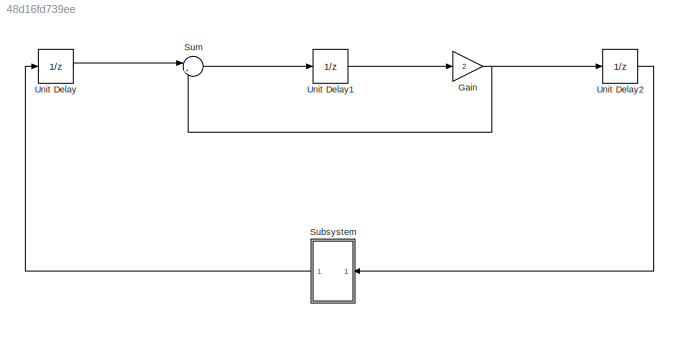
MODEL slx_48d16fd739ee
KIND model
CONFIG AbsTol = auto
CONFIG FixedStep = 0.002
CONFIG MaxStep = auto
CONFIG MinStep = auto
CONFIG RelTol = 1e-3
CONFIG SampleTimeConstraint = Unconstrained
CONFIG Solver = FixedStepDiscrete
CONFIG SolverMode = SingleTasking
CONFIG SolverName = FixedStepDiscrete
CONFIG StartTime = 0.0
CONFIG StopTime = 10.0
BLOCK [Gain] Gain
  Gain = 2
  OutDataTypeStr = Inherit: Inherit via internal rule
  ParamDataTypeStr = Inherit: Inherit via internal rule
  SampleTime = 0.002
  SaturateOnIntegerOverflow = off
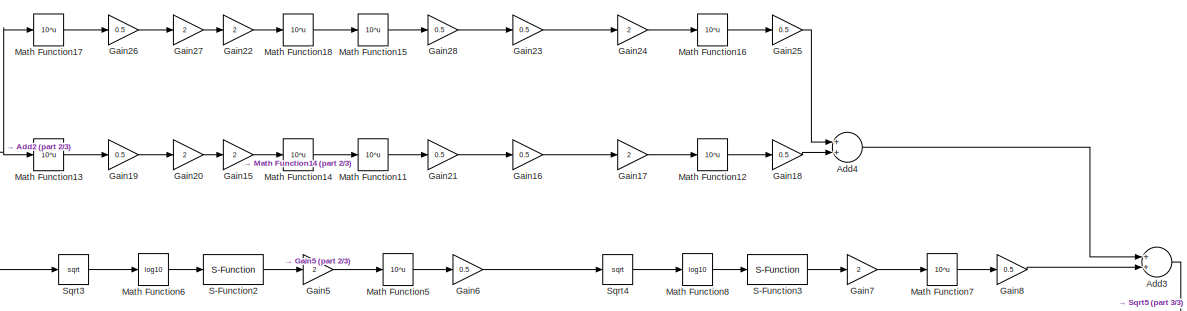
[diagram: Subsystem - part 1/3, top right region]
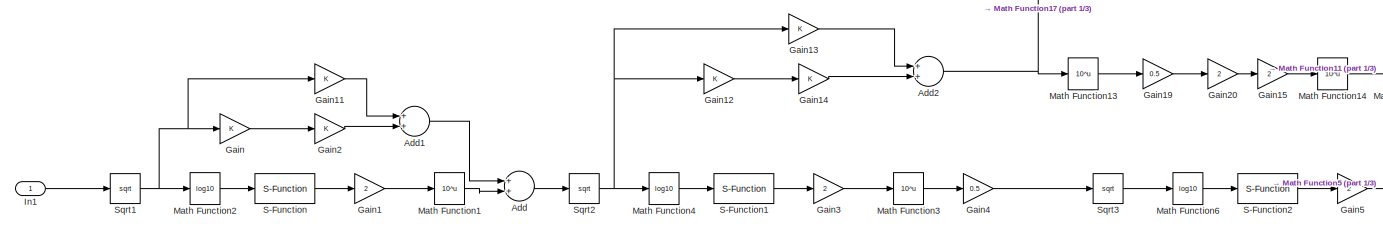
[diagram: Subsystem - part 2/3, middle left region]
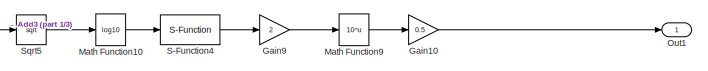
[diagram: Subsystem - part 3/3, bottom center region]
BLOCK [SubSystem] Subsystem
  Ports = [1, 1]
  RequestExecContextInheritance = off
BLOCK [Sum] Subsystem/Add
  InputSameDT = off
  OutDataTypeStr = Inherit: Inherit via internal rule
  Ports = [2, 1]
  SampleTime = [0.01,0]
  SaturateOnIntegerOverflow = off
BLOCK [Sum] Subsystem/Add1
  InputSameDT = off
  OutDataTypeStr = Inherit: Inherit via internal rule
  Ports = [2, 1]
  SampleTime = [0.01,0]
  SaturateOnIntegerOverflow = off
BLOCK [Sum] Subsystem/Add2
  InputSameDT = off
  OutDataTypeStr = Inherit: Inherit via internal rule
  Ports = [2, 1]
  SampleTime = [0.01,0]
  SaturateOnIntegerOverflow = off
BLOCK [Sum] Subsystem/Add3
  InputSameDT = off
  OutDataTypeStr = Inherit: Inherit via internal rule
  Ports = [2, 1]
  SampleTime = [0.01,0.006]
  SaturateOnIntegerOverflow = off
BLOCK [Sum] Subsystem/Add4
  InputSameDT = off
  OutDataTypeStr = Inherit: Inherit via internal rule
  Ports = [2, 1]
  SampleTime = [0.01,0]
  SaturateOnIntegerOverflow = off
BLOCK [Gain] Subsystem/Gain
  OutDataTypeStr = Inherit: Inherit via internal rule
  ParamDataTypeStr = Inherit: Inherit via internal rule
  SampleTime = [0.01,0]
  SaturateOnIntegerOverflow = off
BLOCK [Gain] Subsystem/Gain1
  Gain = 2
  OutDataTypeStr = Inherit: Inherit via internal rule
  ParamDataTypeStr = Inherit: Inherit via internal rule
  SampleTime = [0.01,0]
  SaturateOnIntegerOverflow = off
BLOCK [Gain] Subsystem/Gain10
  Gain = 0.5
  OutDataTypeStr = Inherit: Inherit via internal rule
  ParamDataTypeStr = Inherit: Inherit via internal rule
  SampleTime = [0.01,0.008]
  SaturateOnIntegerOverflow = off
BLOCK [Gain] Subsystem/Gain11
  OutDataTypeStr = Inherit: Inherit via internal rule
  ParamDataTypeStr = Inherit: Inherit via internal rule
  SampleTime = [0.01,0]
  SaturateOnIntegerOverflow = off
BLOCK [Gain] Subsystem/Gain12
  OutDataTypeStr = Inherit: Inherit via internal rule
  ParamDataTypeStr = Inherit: Inherit via internal rule
  SampleTime = [0.01,0]
  SaturateOnIntegerOverflow = off
BLOCK [Gain] Subsystem/Gain13
  OutDataTypeStr = Inherit: Inherit via internal rule
  ParamDataTypeStr = Inherit: Inherit via internal rule
  SampleTime = [0.01,0]
  SaturateOnIntegerOverflow = off
BLOCK [Gain] Subsystem/Gain14
  OutDataTypeStr = Inherit: Inherit via internal rule
  ParamDataTypeStr = Inherit: Inherit via internal rule
  SampleTime = [0.01,0]
  SaturateOnIntegerOverflow = off
BLOCK [Gain] Subsystem/Gain15
  Gain = 2
  OutDataTypeStr = Inherit: Inherit via internal rule
  ParamDataTypeStr = Inherit: Inherit via internal rule
  SampleTime = [0.01,0.006]
  SaturateOnIntegerOverflow = off
BLOCK [Gain] Subsystem/Gain16
  Gain = 0.5
  OutDataTypeStr = Inherit: Inherit via internal rule
  ParamDataTypeStr = Inherit: Inherit via internal rule
  SampleTime = [0.01,0.006]
  SaturateOnIntegerOverflow = off
BLOCK [Gain] Subsystem/Gain17
  Gain = 2
  OutDataTypeStr = Inherit: Inherit via internal rule
  ParamDataTypeStr = Inherit: Inherit via internal rule
  SampleTime = [0.01,0.006]
  SaturateOnIntegerOverflow = off
BLOCK [Gain] Subsystem/Gain18
  Gain = 0.5
  OutDataTypeStr = Inherit: Inherit via internal rule
  ParamDataTypeStr = Inherit: Inherit via internal rule
  SampleTime = [0.01,0.006]
  SaturateOnIntegerOverflow = off
BLOCK [Gain] Subsystem/Gain19
  Gain = 0.5
  OutDataTypeStr = Inherit: Inherit via internal rule
  ParamDataTypeStr = Inherit: Inherit via internal rule
  SampleTime = [0.01,0.006]
  SaturateOnIntegerOverflow = off
BLOCK [Gain] Subsystem/Gain2
  OutDataTypeStr = Inherit: Inherit via internal rule
  ParamDataTypeStr = Inherit: Inherit via internal rule
  SampleTime = [0.01,0]
  SaturateOnIntegerOverflow = off
BLOCK [Gain] Subsystem/Gain20
  Gain = 2
  OutDataTypeStr = Inherit: Inherit via internal rule
  ParamDataTypeStr = Inherit: Inherit via internal rule
  SampleTime = [0.01,0.006]
  SaturateOnIntegerOverflow = off
BLOCK [Gain] Subsystem/Gain21
  Gain = 0.5
  OutDataTypeStr = Inherit: Inherit via internal rule
  ParamDataTypeStr = Inherit: Inherit via internal rule
  SampleTime = [0.01,0.006]
  SaturateOnIntegerOverflow = off
BLOCK [Gain] Subsystem/Gain22
  Gain = 2
  OutDataTypeStr = Inherit: Inherit via internal rule
  ParamDataTypeStr = Inherit: Inherit via internal rule
  SampleTime = [0.01,0.006]
  SaturateOnIntegerOverflow = off
BLOCK [Gain] Subsystem/Gain23
  Gain = 0.5
  OutDataTypeStr = Inherit: Inherit via internal rule
  ParamDataTypeStr = Inherit: Inherit via internal rule
  SampleTime = [0.01,0.006]
  SaturateOnIntegerOverflow = off
BLOCK [Gain] Subsystem/Gain24
  Gain = 2
  OutDataTypeStr = Inherit: Inherit via internal rule
  ParamDataTypeStr = Inherit: Inherit via internal rule
  SampleTime = [0.01,0.006]
  SaturateOnIntegerOverflow = off
BLOCK [Gain] Subsystem/Gain25
  Gain = 0.5
  OutDataTypeStr = Inherit: Inherit via internal rule
  ParamDataTypeStr = Inherit: Inherit via internal rule
  SampleTime = [0.01,0.006]
  SaturateOnIntegerOverflow = off
BLOCK [Gain] Subsystem/Gain26
  Gain = 0.5
  OutDataTypeStr = Inherit: Inherit via internal rule
  ParamDataTypeStr = Inherit: Inherit via internal rule
  SampleTime = [0.01,0.006]
  SaturateOnIntegerOverflow = off
BLOCK [Gain] Subsystem/Gain27
  Gain = 2
  OutDataTypeStr = Inherit: Inherit via internal rule
  ParamDataTypeStr = Inherit: Inherit via internal rule
  SampleTime = [0.01,0.006]
  SaturateOnIntegerOverflow = off
BLOCK [Gain] Subsystem/Gain28
  Gain = 0.5
  OutDataTypeStr = Inherit: Inherit via internal rule
  ParamDataTypeStr = Inherit: Inherit via internal rule
  SampleTime = [0.01,0.006]
  SaturateOnIntegerOverflow = off
BLOCK [Gain] Subsystem/Gain3
  Gain = 2
  OutDataTypeStr = Inherit: Inherit via internal rule
  ParamDataTypeStr = Inherit: Inherit via internal rule
  SampleTime = [0.01,0.002]
  SaturateOnIntegerOverflow = off
BLOCK [Gain] Subsystem/Gain4
  Gain = 0.5
  OutDataTypeStr = Inherit: Inherit via internal rule
  ParamDataTypeStr = Inherit: Inherit via internal rule
  SampleTime = [0.01,0.002]
  SaturateOnIntegerOverflow = off
BLOCK [Gain] Subsystem/Gain5
  Gain = 2
  OutDataTypeStr = Inherit: Inherit via internal rule
  ParamDataTypeStr = Inherit: Inherit via internal rule
  SampleTime = [0.01,0.004]
  SaturateOnIntegerOverflow = off
BLOCK [Gain] Subsystem/Gain6
  Gain = 0.5
  OutDataTypeStr = Inherit: Inherit via internal rule
  ParamDataTypeStr = Inherit: Inherit via internal rule
  SampleTime = [0.01,0.004]
  SaturateOnIntegerOverflow = off
BLOCK [Gain] Subsystem/Gain7
  Gain = 2
  OutDataTypeStr = Inherit: Inherit via internal rule
  ParamDataTypeStr = Inherit: Inherit via internal rule
  SampleTime = [0.01,0.006]
  SaturateOnIntegerOverflow = off
BLOCK [Gain] Subsystem/Gain8
  Gain = 0.5
  OutDataTypeStr = Inherit: Inherit via internal rule
  ParamDataTypeStr = Inherit: Inherit via internal rule
  SampleTime = [0.01,0.006]
  SaturateOnIntegerOverflow = off
BLOCK [Gain] Subsystem/Gain9
  Gain = 2
  OutDataTypeStr = Inherit: Inherit via internal rule
  ParamDataTypeStr = Inherit: Inherit via internal rule
  SampleTime = [0.01,0.008]
  SaturateOnIntegerOverflow = off
BLOCK [Inport] Subsystem/In1
  IconDisplay = Port number
BLOCK [Math] Subsystem/Math Function1
  Operator = 10^u
  Ports = [1, 1]
  SampleTime = [0.01,0]
BLOCK [Math] Subsystem/Math Function10
  Operator = log10
  Ports = [1, 1]
  SampleTime = [0.01,0.008]
BLOCK [Math] Subsystem/Math Function11
  Operator = 10^u
  Ports = [1, 1]
  SampleTime = [0.01,0.006]
BLOCK [Math] Subsystem/Math Function12
  Operator = 10^u
  Ports = [1, 1]
  SampleTime = [0.01,0.006]
BLOCK [Math] Subsystem/Math Function13
  Operator = 10^u
  Ports = [1, 1]
  SampleTime = [0.01,0.006]
BLOCK [Math] Subsystem/Math Function14
  Operator = 10^u
  Ports = [1, 1]
  SampleTime = [0.01,0.006]
BLOCK [Math] Subsystem/Math Function15
  Operator = 10^u
  Ports = [1, 1]
  SampleTime = [0.01,0.006]
BLOCK [Math] Subsystem/Math Function16
  Operator = 10^u
  Ports = [1, 1]
  SampleTime = [0.01,0.006]
BLOCK [Math] Subsystem/Math Function17
  Operator = 10^u
  Ports = [1, 1]
  SampleTime = [0.01,0.006]
BLOCK [Math] Subsystem/Math Function18
  Operator = 10^u
  Ports = [1, 1]
  SampleTime = [0.01,0.006]
BLOCK [Math] Subsystem/Math Function2
  Operator = log10
  Ports = [1, 1]
  SampleTime = [0.01,0]
BLOCK [Math] Subsystem/Math Function3
  Operator = 10^u
  Ports = [1, 1]
  SampleTime = [0.01,0.002]
BLOCK [Math] Subsystem/Math Function4
  Operator = log10
  Ports = [1, 1]
  SampleTime = [0.01,0.002]
BLOCK [Math] Subsystem/Math Function5
  Operator = 10^u
  Ports = [1, 1]
  SampleTime = [0.01,0.004]
BLOCK [Math] Subsystem/Math Function6
  Operator = log10
  Ports = [1, 1]
  SampleTime = [0.01,0.004]
BLOCK [Math] Subsystem/Math Function7
  Operator = 10^u
  Ports = [1, 1]
  SampleTime = [0.01,0.006]
BLOCK [Math] Subsystem/Math Function8
  Operator = log10
  Ports = [1, 1]
  SampleTime = [0.01,0.006]
BLOCK [Math] Subsystem/Math Function9
  Operator = 10^u
  Ports = [1, 1]
  SampleTime = [0.01,0.008]
BLOCK [Outport] Subsystem/Out1
  IconDisplay = Port number
BLOCK [S-Function] Subsystem/S-Function
  EnableBusSupport = off
  FunctionName = loop
  Ports = [1, 1]
BLOCK [S-Function] Subsystem/S-Function1
  EnableBusSupport = off
  FunctionName = loop
  Ports = [1, 1]
BLOCK [S-Function] Subsystem/S-Function2
  EnableBusSupport = off
  FunctionName = loop
  Ports = [1, 1]
BLOCK [S-Function] Subsystem/S-Function3
  EnableBusSupport = off
  FunctionName = loop
  Ports = [1, 1]
BLOCK [S-Function] Subsystem/S-Function4
  EnableBusSupport = off
  FunctionName = loop
  Ports = [1, 1]
BLOCK [Sqrt] Subsystem/Sqrt1
  SampleTime = [0.01,0]
BLOCK [Sqrt] Subsystem/Sqrt2
  SampleTime = [0.01,0.002]
BLOCK [Sqrt] Subsystem/Sqrt3
  SampleTime = [0.01,0.004]
BLOCK [Sqrt] Subsystem/Sqrt4
  SampleTime = [0.01,0.006]
BLOCK [Sqrt] Subsystem/Sqrt5
  SampleTime = [0.01,0.008]
BLOCK [Sum] Sum
  IconShape = round
  InputSameDT = off
  Inputs = |++
  OutDataTypeStr = Inherit: Inherit via internal rule
  Ports = [2, 1]
  SampleTime = 0.002
  SaturateOnIntegerOverflow = off
BLOCK [UnitDelay] Unit Delay
  InitialCondition = 1
  InputProcessing = Elements as channels (sample based)
  SampleTime = -1
BLOCK [UnitDelay] Unit Delay1
  InitialCondition = 2
  InputProcessing = Elements as channels (sample based)
  SampleTime = -1
BLOCK [UnitDelay] Unit Delay2
  InitialCondition = 1
  InputProcessing = Elements as channels (sample based)
  SampleTime = -1
NET Gain:1 -> Sum:2, Unit Delay2:1
LINE Subsystem/Add1:1 -> Subsystem/Add:1
NET Subsystem/Add2:1 -> Subsystem/Math Function13:1, Subsystem/Math Function17:1
LINE Subsystem/Add3:1 -> Subsystem/Sqrt5:1
LINE Subsystem/Add4:1 -> Subsystem/Add3:1
LINE Subsystem/Add:1 -> Subsystem/Sqrt2:1
LINE Subsystem/Gain10:1 -> Subsystem/Out1:1
LINE Subsystem/Gain11:1 -> Subsystem/Add1:1
LINE Subsystem/Gain12:1 -> Subsystem/Gain14:1
LINE Subsystem/Gain13:1 -> Subsystem/Add2:1
LINE Subsystem/Gain14:1 -> Subsystem/Add2:2
LINE Subsystem/Gain15:1 -> Subsystem/Math Function14:1
LINE Subsystem/Gain16:1 -> Subsystem/Gain17:1
LINE Subsystem/Gain17:1 -> Subsystem/Math Function12:1
LINE Subsystem/Gain18:1 -> Subsystem/Add4:2
LINE Subsystem/Gain19:1 -> Subsystem/Gain20:1
LINE Subsystem/Gain1:1 -> Subsystem/Math Function1:1
LINE Subsystem/Gain20:1 -> Subsystem/Gain15:1
LINE Subsystem/Gain21:1 -> Subsystem/Gain16:1
LINE Subsystem/Gain22:1 -> Subsystem/Math Function18:1
LINE Subsystem/Gain23:1 -> Subsystem/Gain24:1
LINE Subsystem/Gain24:1 -> Subsystem/Math Function16:1
LINE Subsystem/Gain25:1 -> Subsystem/Add4:1
LINE Subsystem/Gain26:1 -> Subsystem/Gain27:1
LINE Subsystem/Gain27:1 -> Subsystem/Gain22:1
LINE Subsystem/Gain28:1 -> Subsystem/Gain23:1
LINE Subsystem/Gain2:1 -> Subsystem/Add1:2
LINE Subsystem/Gain3:1 -> Subsystem/Math Function3:1
LINE Subsystem/Gain4:1 -> Subsystem/Sqrt3:1
LINE Subsystem/Gain5:1 -> Subsystem/Math Function5:1
LINE Subsystem/Gain6:1 -> Subsystem/Sqrt4:1
LINE Subsystem/Gain7:1 -> Subsystem/Math Function7:1
LINE Subsystem/Gain8:1 -> Subsystem/Add3:2
LINE Subsystem/Gain9:1 -> Subsystem/Math Function9:1
LINE Subsystem/Gain:1 -> Subsystem/Gain2:1
LINE Subsystem/In1:1 -> Subsystem/Sqrt1:1
LINE Subsystem/Math Function10:1 -> Subsystem/S-Function4:1
LINE Subsystem/Math Function11:1 -> Subsystem/Gain21:1
LINE Subsystem/Math Function12:1 -> Subsystem/Gain18:1
LINE Subsystem/Math Function13:1 -> Subsystem/Gain19:1
LINE Subsystem/Math Function14:1 -> Subsystem/Math Function11:1
LINE Subsystem/Math Function15:1 -> Subsystem/Gain28:1
LINE Subsystem/Math Function16:1 -> Subsystem/Gain25:1
LINE Subsystem/Math Function17:1 -> Subsystem/Gain26:1
LINE Subsystem/Math Function18:1 -> Subsystem/Math Function15:1
LINE Subsystem/Math Function1:1 -> Subsystem/Add:2
LINE Subsystem/Math Function2:1 -> Subsystem/S-Function:1
LINE Subsystem/Math Function3:1 -> Subsystem/Gain4:1
LINE Subsystem/Math Function4:1 -> Subsystem/S-Function1:1
LINE Subsystem/Math Function5:1 -> Subsystem/Gain6:1
LINE Subsystem/Math Function6:1 -> Subsystem/S-Function2:1
LINE Subsystem/Math Function7:1 -> Subsystem/Gain8:1
LINE Subsystem/Math Function8:1 -> Subsystem/S-Function3:1
LINE Subsystem/Math Function9:1 -> Subsystem/Gain10:1
LINE Subsystem/S-Function1:1 -> Subsystem/Gain3:1
LINE Subsystem/S-Function2:1 -> Subsystem/Gain5:1
LINE Subsystem/S-Function3:1 -> Subsystem/Gain7:1
LINE Subsystem/S-Function4:1 -> Subsystem/Gain9:1
LINE Subsystem/S-Function:1 -> Subsystem/Gain1:1
NET Subsystem/Sqrt1:1 -> Subsystem/Gain11:1, Subsystem/Gain:1, Subsystem/Math Function2:1
NET Subsystem/Sqrt2:1 -> Subsystem/Gain12:1, Subsystem/Gain13:1, Subsystem/Math Function4:1
LINE Subsystem/Sqrt3:1 -> Subsystem/Math Function6:1
LINE Subsystem/Sqrt4:1 -> Subsystem/Math Function8:1
LINE Subsystem/Sqrt5:1 -> Subsystem/Math Function10:1
LINE Subsystem:1 -> Unit Delay:1
LINE Sum:1 -> Unit Delay1:1
LINE Unit Delay1:1 -> Gain:1
LINE Unit Delay2:1 -> Subsystem:1
LINE Unit Delay:1 -> Sum:1
note: NET lines group one-source signal fan-out (src -> all destinations, sorted); 1:1 wires keep LINE
